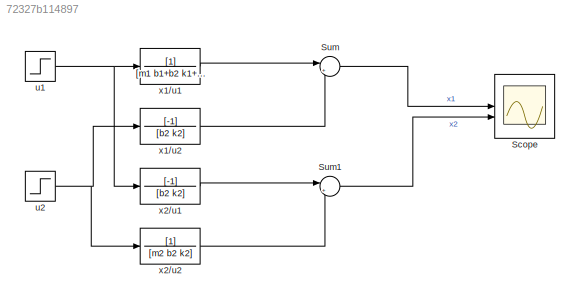
MODEL slx_72327b114897
KIND model
CONFIG AbsTol = auto
CONFIG EnableMultiTasking = off
CONFIG FixedStep = auto
CONFIG MaxStep = auto
CONFIG MinStep = auto
CONFIG RelTol = 1e-3
CONFIG SampleTimeConstraint = Unconstrained
CONFIG SolverName = VariableStepAuto
CONFIG StartTime = 0.0
CONFIG StopTime = 30
BLOCK [Scope] Scope
  Floating = off
  NumInputPorts = 2
  ScopeSpecificationString = Simulink.scopes.TimeScopeBlockCfg('CurrentConfiguration', extmgr.ConfigurationSet(extmgr.Configuration('Core','General UI',true),extmgr.Configuration('Core','Source UI',true),extmgr.Configuration('Sources','WiredSimulink',true),extmgr.Configuration('Visuals','Time Domain',true,'SerializedDisplays',{struct('MinYLimReal','-0.29854','MaxYLimReal','0.21273','YLabelReal','','MinYLimMag','0.00000','MaxY...<+1362ch>
BLOCK [Sum] Sum
  Inputs = |++
BLOCK [Sum] Sum1
  Inputs = |++
BLOCK [Step] u1
  SampleTime = 0
  Time = 2
BLOCK [Step] u2
  After = 0.7
  SampleTime = 0
  Time = 10
BLOCK [TransferFcn] x1//u1
  Denominator = [m1 b1+b2 k1+k2]
BLOCK [TransferFcn] x1//u2
  Denominator = [b2 k2]
  Numerator = [-1]
BLOCK [TransferFcn] x2//u1
  Denominator = [b2 k2]
  Numerator = [-1]
BLOCK [TransferFcn] x2//u2
  Denominator = [m2 b2 k2]
LINE Sum1:1 -> Scope:2
LINE Sum:1 -> Scope:1
NET u1:1 -> x1//u1:1, x2//u1:1
NET u2:1 -> x1//u2:1, x2//u2:1
LINE x1//u1:1 -> Sum:1
LINE x1//u2:1 -> Sum:2
LINE x2//u1:1 -> Sum1:1
LINE x2//u2:1 -> Sum1:2
note: NET lines group one-source signal fan-out (src -> all destinations, sorted); 1:1 wires keep LINE
